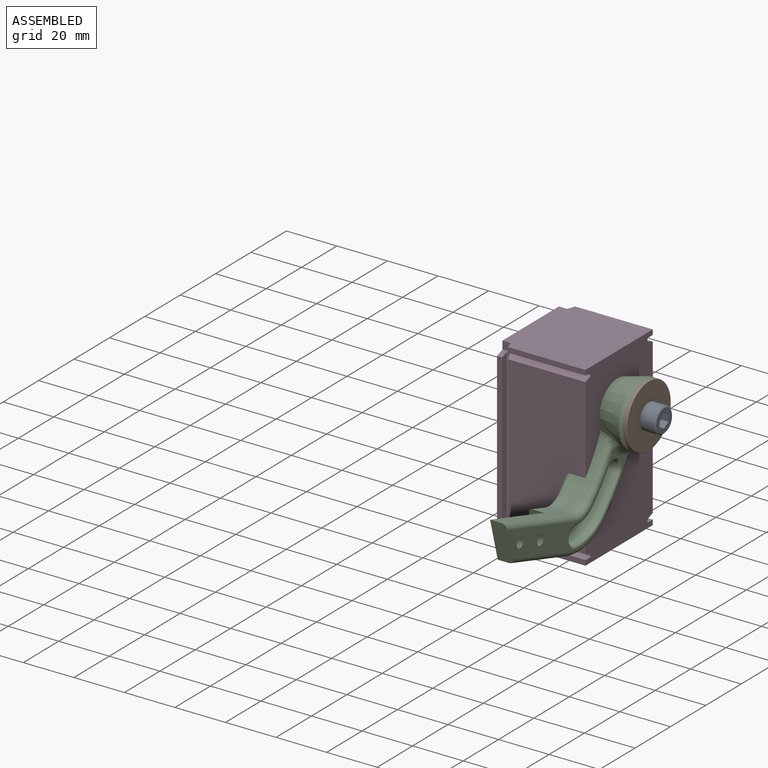
[diagram: assembled view]
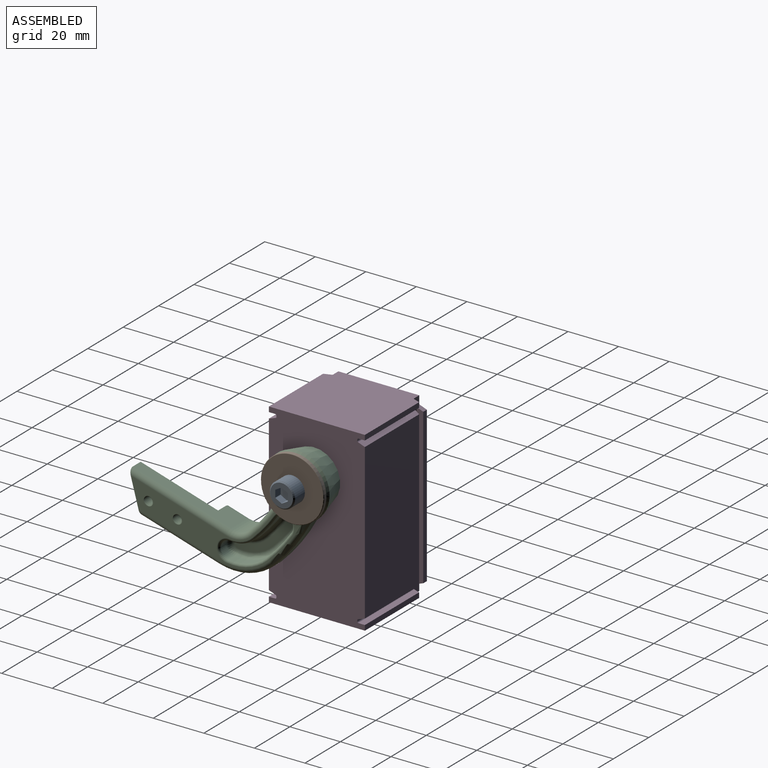
[diagram: assembled view, second angle]
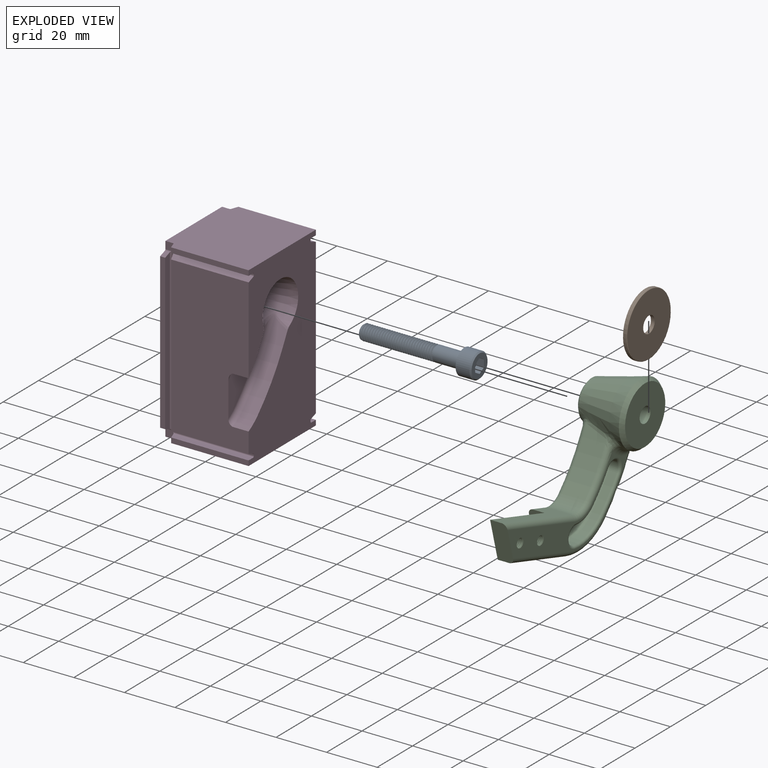
[diagram: exploded view]
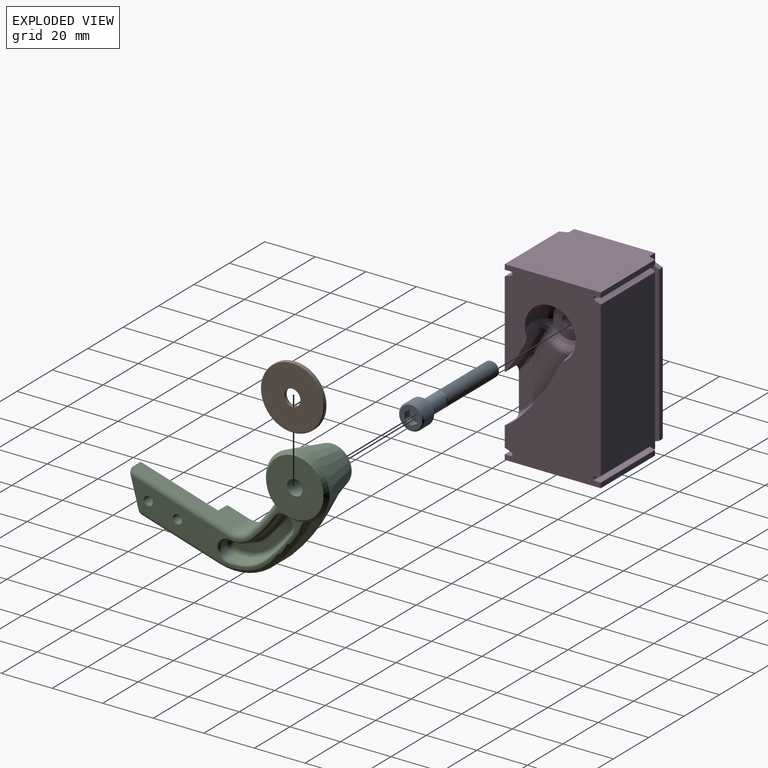
[diagram: exploded view, second angle]
ASSEMBLY  parts=4 mates=3
PART A: 57 faces, bbox 46.5x10.1x10.1 mm
  f0: cone r=2.5mm half-angle=45deg, axis (1,0,0), area 5.2mm2, adj f33,f34,f35,f37,f55,f56
  f1: cylinder r=5mm len=10mm, axis (1,0,0), area 172.8mm2, adj f2,f45
  f2: plane 10x10mm, normal (-1,0,0), area 50.3mm2, adj f1,f4
  f3: plane 9x9mm, normal (1,0,0), area 42mm2, adj f38,f39,f40,f41,f42,f43,f45,f46
  f4: cylinder r=3mm len=11.09mm, axis (1,0,0), area 197.8mm2, adj f2,f5,f35,f37,f52,f53,f54
  f5: cylinder r=3mm len=6mm, axis (1,0,0), area 2mm2, adj f4,f6,f35,f37
  f6: cylinder r=3mm len=6mm, axis (1,0,0), area 2mm2, adj f5,f7,f35,f37
  f7: cylinder r=3mm len=6mm, axis (1,0,0), area 1.9mm2, adj f6,f8,f35,f37
  f8: cylinder r=3mm len=6mm, axis (1,0,0), area 2mm2, adj f7,f9,f35,f37
  f9: cylinder r=3mm len=6mm, axis (1,0,0), area 1.9mm2, adj f8,f10,f35,f37
  f10: cylinder r=3mm len=6mm, axis (1,0,0), area 2mm2, adj f9,f11,f35,f37
  f11: cylinder r=3mm len=6mm, axis (1,0,0), area 2mm2, adj f10,f12,f35,f37
  f12: cylinder r=3mm len=6mm, axis (1,0,0), area 2mm2, adj f11,f13,f35,f37
  f13: cylinder r=3mm len=6mm, axis (1,0,0), area 2mm2, adj f12,f14,f35,f37
  f14: cylinder r=3mm len=6mm, axis (1,0,0), area 2mm2, adj f13,f15,f35,f37
  f15: cylinder r=3mm len=6mm, axis (1,0,0), area 2mm2, adj f14,f16,f35,f37
  f16: cylinder r=3mm len=6mm, axis (1,0,0), area 2mm2, adj f15,f17,f35,f37
  f17: cylinder r=3mm len=6mm, axis (1,0,0), area 2mm2, adj f16,f18,f35,f37
  f18: cylinder r=3mm len=6mm, axis (1,0,0), area 2mm2, adj f17,f19,f35,f37
  f19: cylinder r=3mm len=6mm, axis (1,0,0), area 2mm2, adj f18,f20,f35,f37
  f20: cylinder r=3mm len=6mm, axis (1,0,0), area 2mm2, adj f19,f21,f35,f37
  f21: cylinder r=3mm len=6mm, axis (1,0,0), area 2mm2, adj f20,f22,f35,f37
  f22: cylinder r=3mm len=6mm, axis (1,0,0), area 2mm2, adj f21,f23,f35,f37
  f23: cylinder r=3mm len=6mm, axis (1,0,0), area 2mm2, adj f22,f24,f35,f37
  f24: cylinder r=3mm len=6mm, axis (1,0,0), area 2mm2, adj f23,f25,f35,f37
  f25: cylinder r=3mm len=6mm, axis (1,0,0), area 1.9mm2, adj f24,f26,f35,f37
  f26: cylinder r=3mm len=6mm, axis (1,0,0), area 2mm2, adj f25,f27,f35,f37
  f27: cylinder r=3mm len=6mm, axis (1,0,0), area 2mm2, adj f26,f28,f35,f37
  f28: cylinder r=3mm len=6mm, axis (1,0,0), area 2mm2, adj f27,f29,f35,f37
  f29: cylinder r=3mm len=6mm, axis (1,0,0), area 2mm2, adj f28,f30,f35,f37
  f30: cylinder r=3mm len=6mm, axis (1,0,0), area 2mm2, adj f29,f31,f35,f37
  f31: cylinder r=3mm len=6mm, axis (1,0,0), area 2mm2, adj f30,f32,f35,f37
  f32: cylinder r=3mm len=6mm, axis (1,0,0), area 2mm2, adj f31,f33,f35,f37
  f33: cylinder r=3mm len=6mm, axis (1,0,0), area 1.9mm2, adj f0,f32,f35,f37
  f34: plane 5.05x4.94mm, normal (-1,0,0), area 19.4mm2, adj f0,f35,f36,f55
  f35: bspline ~29.81x6.93mm, area 315.8mm2, adj f0,f4,f5,f6,f7,f8,f9,f10
  f36: bspline ~29.75x5.68mm, area 137.2mm2, adj f34,f35,f37,f54,f55
  f37: bspline ~29.81x6.93mm, area 322mm2, adj f0,f4,f5,f6,f7,f8,f9,f10
  f38: plane 3x2.3mm, normal (0,0.5,0.87), area 8mm2, adj f3,f44,f46,f51
  f39: plane 3x2.3mm, normal (0,-0.5,0.87), area 8mm2, adj f3,f44,f46,f47
  f40: plane 3x2.66mm, normal (0,-1,0), area 8mm2, adj f3,f44,f47,f48
  f41: plane 3x2.3mm, normal (0,-0.5,-0.87), area 8mm2, adj f3,f44,f48,f49
  f42: plane 3x2.3mm, normal (0,0.5,-0.87), area 8mm2, adj f3,f44,f49,f50
  f43: plane 3x2.66mm, normal (0,1,0), area 8mm2, adj f3,f44,f50,f51
  f44: plane 5.71x5mm, normal (1,0,0), area 21.6mm2, adj f38,f39,f40,f41,f42,f43,f46,f47
  f45: cone r=4.5mm half-angle=45deg, axis (-1,0,0), area 21.1mm2, adj f1,f3
  f46: cylinder r=0.2mm len=3mm, axis (-1,0,0), area 0.6mm2, adj f3,f38,f39,f44
  f47: cylinder r=0.2mm len=3mm, axis (-1,0,0), area 0.6mm2, adj f3,f39,f40,f44
  f48: cylinder r=0.2mm len=3mm, axis (-1,0,0), area 0.6mm2, adj f3,f40,f41,f44
  f49: cylinder r=0.2mm len=3mm, axis (-1,0,0), area 0.6mm2, adj f3,f41,f42,f44
  f50: cylinder r=0.2mm len=3mm, axis (-1,0,0), area 0.6mm2, adj f3,f42,f43,f44
  f51: cylinder r=0.2mm len=3mm, axis (-1,0,0), area 0.6mm2, adj f3,f38,f43,f44
  f52: plane 1.72x0.54mm, normal (-0.86,0.5,0.04), area 0.7mm2, adj f4,f37,f54
  f53: plane 1.69x0.54mm, normal (0.86,0.5,-0.04), area 0.7mm2, adj f4,f35,f54
  f54: cylinder r=0.14mm len=1.71mm, axis (-0.05,0,-1), area 0.5mm2, adj f4,f36,f52,f53
  f55: cylinder r=0.14mm len=0.82mm, axis (0.05,0,1), area 0.1mm2, adj f0,f34,f36,f56
  f56: plane 0.81x0.39mm, normal (-0.86,0.5,0.04), area 0.2mm2, adj f0,f37,f55
PART B: 5 faces, bbox 1.5x27.1x27.1 mm
  f0: cylinder r=3.25mm len=6.5mm, axis (-1,0,0), area 30.6mm2, adj f2,f3
  f1: cylinder r=12.5mm len=25mm, axis (-1,0,0), area 98.2mm2, adj f3,f4
  f2: plane 24.5x24.5mm, normal (1,0,0), area 438.3mm2, adj f0,f4
  f3: plane 25x25mm, normal (-1,0,0), area 457.7mm2, adj f0,f1
  f4: torus R=12.25mm, axis (1,0,0), area 30.6mm2, adj f1,f2
PART C: 92 faces, bbox 22.5x83.5x55.2 mm
  f0: cylinder r=1.65mm len=6.5mm, axis (-1,0,0), area 16mm2, adj f6,f13,f72,f74,f76,f77
  f1: cylinder r=1.65mm len=6.5mm, axis (-1,0,0), area 16mm2, adj f6,f13,f66,f68,f70,f71
  f2: cylinder r=2mm len=5.29mm, axis (0,-0.47,-0.88), area 12.9mm2, adj f3,f17,f20,f37,f53,f54
  f3: plane 9.9x6.97mm, normal (-1,0,0), area 10.5mm2, adj f2,f16,f39,f54,f55
  f4: plane 11.88x4.79mm, normal (-1,0,0), area 17.7mm2, adj f27,f31,f32,f43,f57
  f5: plane 30.64x9.24mm, normal (0,-0.29,-0.96), area 144mm2, adj f6,f8,f28,f44
  f6: plane 35.16x25.37mm, normal (-1,0,0), area 427.1mm2, adj f0,f1,f5,f30,f43,f44,f66,f67
  f7: cylinder r=2mm len=39.59mm, axis (0,-0.96,0.29), area 126.1mm2, adj f13,f24,f30,f44
  f8: cylinder r=2mm len=32.41mm, axis (0,-0.96,0.29), area 102.5mm2, adj f5,f13,f29,f44
  f9: plane 22.72x22.72mm, normal (1,0,0), area 375.7mm2, adj f47,f48
  f10: cone r=7.5mm half-angle=14deg, axis (1,0,0), area 951.9mm2, adj f33,f34,f35,f36,f37,f38,f40,f41
  f11: plane 13.06x13.05mm, normal (-1,0,0), area 37.8mm2, adj f45,f49,f50,f51,f52
  f12: cylinder r=2mm len=1.5mm, axis (0,-0.47,-0.88), area 0.9mm2, adj f17,f18,f33
  f13: plane 68.15x27.22mm, normal (1,0,0), area 381.8mm2, adj f0,f1,f7,f8,f18,f23,f24,f29
  f14: cylinder r=2mm len=3.81mm, axis (0,-0.47,-0.88), area 3.9mm2, adj f15,f23,f40
  f15: plane 9x7.4mm, normal (0,0.88,-0.47), area 52.8mm2, adj f14,f16,f22,f42
  f16: cylinder r=2mm len=8.33mm, axis (0,-0.47,-0.88), area 19.1mm2, adj f3,f15,f21,f41
  f17: plane 9x4.08mm, normal (0,-0.88,0.47), area 27.2mm2, adj f2,f12,f19,f35
  f18: torus R=65mm, axis (-1,0,0), area 60.7mm2, adj f12,f13,f19,f24,f34
  f19: cylinder r=63mm len=15.79mm, axis (-1,0,0), area 178.4mm2, adj f17,f18,f20,f25
  f20: torus R=65mm, axis (-1,0,0), area 63mm2, adj f2,f19,f26,f53
  f21: torus R=75mm, axis (-1,0,0), area 75.4mm2, adj f16,f22,f27,f55
  f22: cylinder r=77mm len=19.3mm, axis (-1,0,0), area 218.1mm2, adj f15,f21,f23,f28
  f23: torus R=75mm, axis (-1,0,0), area 74.5mm2, adj f13,f14,f22,f29,f38
  f24: torus R=10mm, axis (-1,0,0), area 29.1mm2, adj f7,f13,f18,f25
  f25: cylinder r=8mm len=9mm, axis (-1,0,0), area 76.5mm2, adj f19,f24,f26,f30
  f26: torus R=10mm, axis (-1,0,0), area 29.1mm2, adj f20,f25,f31,f59
  f27: torus R=20mm, axis (-1,0,0), area 71mm2, adj f4,f21,f28,f32,f56
  f28: cylinder r=22mm len=21.66mm, axis (-1,0,0), area 210.3mm2, adj f5,f22,f27,f29,f43
  f29: torus R=20mm, axis (-1,0,0), area 71mm2, adj f8,f13,f23,f28
  f30: plane 39.01x11.77mm, normal (0,0.29,0.96), area 222.8mm2, adj f6,f7,f25,f31,f43,f44
  f31: cylinder r=2mm len=8.95mm, axis (0,-0.96,0.29), area 25.5mm2, adj f4,f26,f30,f43,f58
  f32: cylinder r=2mm len=2.28mm, axis (0,-0.96,0.29), area 2mm2, adj f4,f27,f43
  f33: bspline ~4.55x4.38mm, area 7.7mm2, adj f10,f12,f34,f35
  f34: bspline ~6.52x5.02mm, area 14.9mm2, adj f10,f18,f33,f36
  f35: bspline ~17.56x6.98mm, area 23.9mm2, adj f10,f17,f33,f37
  f36: torus R=15.34mm, axis (-1,0,0), area 48.3mm2, adj f10,f13,f34,f38
  f37: bspline ~5.53x5.3mm, area 14.5mm2, adj f2,f10,f35,f39,f49
  f38: bspline ~4.41x4.33mm, area 9.3mm2, adj f10,f23,f36,f40
  f39: torus R=10.59mm, axis (-1,0,0), area 33.7mm2, adj f3,f37,f41,f51
  f40: bspline ~5.47x4.74mm, area 15.2mm2, adj f10,f14,f38,f42
  f41: bspline ~6.05x5.65mm, area 15mm2, adj f10,f16,f39,f42,f52
  f42: bspline ~11.62x5.7mm, area 17.2mm2, adj f10,f15,f40,f41
  f43: plane 16.46x7.03mm, normal (0,-0.96,-0.26), area 105.3mm2, adj f4,f6,f28,f30,f31,f32
  f44: plane 16.46x7.03mm, normal (0,-0.96,-0.26), area 105.3mm2, adj f5,f6,f7,f8,f13,f30
  f45: cylinder r=5.5mm len=11mm, axis (-1,0,0), area 241.9mm2, adj f11,f46
  f46: plane 11x11mm, normal (-1,0,0), area 65.4mm2, adj f45,f47
  f47: cylinder r=3.07mm len=15mm, axis (-1,0,0), area 289.7mm2, adj f9,f46
  f48: cone r=12.6mm half-angle=38deg, axis (-1,0,0), area 152mm2, adj f9,f10
  f49: bspline ~1.66x1.63mm, area 1.7mm2, adj f11,f37,f50,f51
  f50: cone r=6.5mm half-angle=52deg, axis (1,0,0), area 55.5mm2, adj f10,f11,f49,f52
  f51: cone r=6.51mm half-angle=53.7deg, axis (1,0,0), area 10.7mm2, adj f11,f39,f49,f52
  f52: bspline ~1.56x1.49mm, area 2mm2, adj f11,f41,f50,f51
  f53: cone r=66.5mm half-angle=45deg, axis (1,0,0), area 45.1mm2, adj f2,f20,f54,f59,f60
  f54: cone r=13.09mm half-angle=45deg, axis (1,0,0), area 18.5mm2, adj f2,f3,f53,f55,f60
  f55: cone r=73.5mm half-angle=45deg, axis (-1,0,0), area 52.5mm2, adj f3,f21,f54,f56,f60
  f56: cone r=18.5mm half-angle=45deg, axis (-1,0,0), area 41.4mm2, adj f27,f55,f57,f60
  f57: plane 11.4x4.34mm, normal (-0.71,0.68,0.19), area 21.2mm2, adj f4,f56,f58,f60
  f58: plane 5.49x3.09mm, normal (-0.71,-0.2,-0.68), area 9.3mm2, adj f31,f57,f59,f60
  f59: cone r=11.5mm half-angle=45deg, axis (1,0,0), area 24.2mm2, adj f26,f53,f58,f60
  f60: plane 33.01x26.53mm, normal (-1,0,0), area 268.6mm2, adj f53,f54,f55,f56,f57,f58,f59
  f61: cylinder r=11.5mm len=9.67mm, axis (1,0,0), area 31.6mm2, adj f64,f81,f82,f87
  f62: cylinder r=18.5mm len=15.55mm, axis (1,0,0), area 50.8mm2, adj f63,f79,f82,f91
  f63: cylinder r=73.5mm len=11.37mm, axis (1,0,0), area 44.7mm2, adj f62,f78,f84,f90
  f64: cylinder r=66.5mm len=10.29mm, axis (1,0,0), area 40.4mm2, adj f61,f80,f84,f86
  f65: plane 24.73x18.05mm, normal (1,0,0), area 90.8mm2, adj f78,f79,f80,f81,f83,f85
  f66: bspline ~6.63x4.06mm, area 45.7mm2, adj f1,f6,f67,f71
  f67: bspline ~6.38x4.64mm, area 12mm2, adj f6,f66,f68,f69,f70
  f68: bspline ~3.96x1.76mm, area 1.4mm2, adj f1,f6,f67,f70
  f69: bspline ~4.18x4.16mm, area 0.7mm2, adj f13,f67,f70,f71
  f70: bspline ~6.63x4.06mm, area 45.7mm2, adj f1,f13,f67,f68,f69
  f71: bspline ~3.9x2.02mm, area 1.4mm2, adj f1,f13,f66,f69
  f72: bspline ~6.75x4.55mm, area 45.7mm2, adj f0,f6,f73,f76
  f73: bspline ~6.28x4.11mm, area 12mm2, adj f6,f72,f74,f75,f77
  f74: bspline ~3.96x1.76mm, area 1.4mm2, adj f0,f6,f73,f77
  f75: bspline ~4.11x3.88mm, area 0.7mm2, adj f13,f73,f76,f77
  f76: bspline ~4.08x2.38mm, area 1.4mm2, adj f0,f13,f72,f75
  f77: bspline ~6.63x4.06mm, area 45.7mm2, adj f0,f13,f73,f74,f75
  f78: torus R=71.5mm, axis (1,0,0), area 46.3mm2, adj f63,f65,f79,f85
  f79: torus R=16.5mm, axis (1,0,0), area 51.1mm2, adj f62,f65,f78,f83
  f80: torus R=68.5mm, axis (1,0,0), area 42.8mm2, adj f64,f65,f81,f85
  f81: torus R=13.5mm, axis (1,0,0), area 35.1mm2, adj f61,f65,f80,f83
  f82: cylinder r=3.5mm len=6.96mm, axis (-1,0,0), area 33mm2, adj f61,f62,f83,f89
  f83: torus R=1.5mm, axis (-1,0,0), area 27.4mm2, adj f65,f79,f81,f82
  f84: cylinder r=3.5mm len=6.39mm, axis (-1,0,0), area 33mm2, adj f63,f64,f85,f88
  f85: torus R=1.5mm, axis (-1,0,0), area 27.4mm2, adj f65,f78,f80,f84
  f86: torus R=65.5mm, axis (-1,0,0), area 21.1mm2, adj f13,f64,f87,f88
  f87: torus R=10.5mm, axis (-1,0,0), area 16mm2, adj f13,f61,f86,f89
  f88: torus R=4.5mm, axis (-1,0,0), area 19.1mm2, adj f13,f84,f86,f90
  f89: torus R=4.5mm, axis (-1,0,0), area 19.1mm2, adj f13,f82,f87,f91
  f90: torus R=74.5mm, axis (-1,0,0), area 23.5mm2, adj f13,f63,f88,f91
  f91: torus R=19.5mm, axis (-1,0,0), area 27.1mm2, adj f13,f62,f89,f90
PART D: 100 faces, bbox 41.1x40.4x70.8 mm
  f0: plane 38x35mm, normal (0,0,-1), area 1307.3mm2, adj f1,f6,f8,f9,f20,f70,f71,f72
  f1: plane 70x38mm, normal (-1,0,0), area 2614.5mm2, adj f0,f2,f3,f4,f70,f75,f76,f77
  f2: plane 38x35mm, normal (0,0,1), area 1307.3mm2, adj f1,f9,f12,f15,f18,f43,f44,f70
  f3: plane 61.32x2mm, normal (0,1,0), area 122.6mm2, adj f1,f10,f97,f98
  f4: plane 61.32x2mm, normal (0,-1,0), area 122.6mm2, adj f1,f16,f77,f78
  f5: plane 61.32x30.66mm, normal (0,1,0), area 1879.8mm2, adj f9,f14,f88,f94
  f6: plane 30.66x2mm, normal (0,1,0), area 61.3mm2, adj f0,f9,f72,f90
  f7: plane 62.07x31.41mm, normal (0,-1,0), area 1730mm2, adj f9,f17,f50,f52,f55,f56,f57,f80
  f8: plane 30.66x2mm, normal (0,-1,0), area 61.3mm2, adj f0,f9,f73,f83
  f9: plane 70.07x38.07mm, normal (1,0,0), area 1965.9mm2, adj f0,f2,f5,f6,f7,f8,f42,f43
  f10: plane 63.14x2.5mm, normal (1,0,0), area 155.6mm2, adj f3,f11,f97,f98
  f11: cylinder r=0.5mm len=64.2mm, axis (0,0,1), area 50mm2, adj f10,f70,f96,f97,f98,f99
  f12: cylinder r=0.5mm len=2.5mm, axis (0,0,1), area 1.4mm2, adj f2,f15,f70,f93
  f13: cylinder r=0.5mm len=64.2mm, axis (0,0,1), area 38.9mm2, adj f14,f70,f89,f95
  f14: plane 63.26x2.67mm, normal (-0.94,0.34,0), area 177.1mm2, adj f5,f13,f88,f94
  f15: plane 2.67x2.03mm, normal (-0.94,0.34,0), area 5.7mm2, adj f2,f12,f43,f92,f93
  f16: plane 63.14x2.5mm, normal (1,0,0), area 155.6mm2, adj f4,f21,f77,f78
  f17: plane 63.26x2.67mm, normal (-0.94,-0.34,0), area 177.1mm2, adj f7,f19,f80,f85
  f18: plane 2.67x2.03mm, normal (-0.94,-0.34,0), area 5.7mm2, adj f2,f44,f74,f86,f87
  f19: cylinder r=0.5mm len=64.2mm, axis (0,0,1), area 38.9mm2, adj f17,f75,f81,f84
  f20: cylinder r=0.5mm len=2.5mm, axis (0,0,1), area 1.4mm2, adj f0,f73,f75,f82
  f21: cylinder r=0.5mm len=64.2mm, axis (0,0,1), area 50mm2, adj f16,f75,f76,f77,f78,f79
  f22: cylinder r=2.5mm len=5mm, axis (1,0,0), area 12.7mm2, adj f23,f65,f66,f67,f69
  f23: cylinder r=2.5mm len=5mm, axis (1,0,0), area 3.9mm2, adj f22,f24,f67,f69
  f24: cylinder r=2.5mm len=5mm, axis (1,0,0), area 3.8mm2, adj f23,f25,f67,f69
  f25: cylinder r=2.5mm len=5mm, axis (1,0,0), area 3.9mm2, adj f24,f26,f67,f69
  f26: cylinder r=2.5mm len=5mm, axis (1,0,0), area 3.8mm2, adj f25,f27,f67,f69
  f27: cylinder r=2.5mm len=5mm, axis (1,0,0), area 3.9mm2, adj f26,f28,f67,f69
  f28: cylinder r=2.5mm len=5mm, axis (1,0,0), area 3.9mm2, adj f27,f29,f67,f69
  f29: cylinder r=2.5mm len=5mm, axis (1,0,0), area 3.9mm2, adj f28,f30,f67,f69
  f30: cylinder r=2.5mm len=5mm, axis (1,0,0), area 3.9mm2, adj f29,f31,f67,f69
  f31: cylinder r=2.5mm len=5mm, axis (1,0,0), area 3.8mm2, adj f30,f32,f67,f69
  f32: cylinder r=2.5mm len=5mm, axis (1,0,0), area 3.9mm2, adj f31,f33,f67,f69
  f33: cylinder r=2.5mm len=5mm, axis (1,0,0), area 3.9mm2, adj f32,f34,f67,f69
  f34: cylinder r=2.5mm len=5mm, axis (1,0,0), area 3.9mm2, adj f33,f35,f67,f69
  f35: cylinder r=2.5mm len=5mm, axis (1,0,0), area 3.8mm2, adj f34,f36,f67,f69
  f36: cylinder r=2.5mm len=5mm, axis (1,0,0), area 3.9mm2, adj f35,f37,f67,f69
  f37: cylinder r=2.5mm len=5mm, axis (1,0,0), area 3.9mm2, adj f36,f38,f67,f69
  f38: cylinder r=2.5mm len=5mm, axis (1,0,0), area 3.9mm2, adj f37,f39,f67,f69
  f39: cylinder r=2.5mm len=5mm, axis (1,0,0), area 3.9mm2, adj f38,f40,f67,f69
  f40: cylinder r=2.5mm len=5mm, axis (1,0,0), area 3.9mm2, adj f39,f41,f67,f69
  f41: cylinder r=2.5mm len=4.23mm, axis (1,0,0), area 1mm2, adj f40,f45,f67,f69
  f42: cone r=7.55mm half-angle=12.8deg, axis (1,0,0), area 395.8mm2, adj f9,f46,f58,f59,f63,f64
  f43: plane 30.66x2mm, normal (0,1,0), area 61.3mm2, adj f2,f9,f15,f92
  f44: plane 30.66x2mm, normal (0,-1,0), area 61.3mm2, adj f2,f9,f18,f87
  f45: plane 13.38x13.38mm, normal (1,0,0), area 111mm2, adj f41,f46,f67,f68,f69
  f46: cone r=6.55mm half-angle=51.4deg, axis (1,0,0), area 70.3mm2, adj f42,f45,f60,f61,f62
  f47: plane 7.73x6mm, normal (0,-0.88,0.47), area 42.1mm2, adj f9,f48,f54,f64
  f48: cylinder r=2mm len=9.06mm, axis (0,-0.47,-0.88), area 22.2mm2, adj f47,f50,f53,f62,f63
  f49: plane 6.01x4.24mm, normal (0,0.88,-0.47), area 22.8mm2, adj f9,f51,f55,f58
  f50: plane 28.51x19.41mm, normal (1,0,0), area 244.6mm2, adj f7,f48,f51,f52,f53,f56,f61
  f51: cylinder r=2mm len=5.4mm, axis (0,-0.47,-0.88), area 13.2mm2, adj f49,f50,f52,f59,f60
  f52: torus R=64.95mm, axis (-1,0,0), area 43.6mm2, adj f7,f50,f51,f55
  f53: torus R=75.05mm, axis (-1,0,0), area 75mm2, adj f48,f50,f54,f56
  f54: cylinder r=77.05mm len=19.2mm, axis (-1,0,0), area 144.5mm2, adj f9,f47,f53,f57
  f55: cylinder r=62.95mm len=10.43mm, axis (-1,0,0), area 75.3mm2, adj f7,f9,f49,f52
  f56: torus R=20.05mm, axis (-1,0,0), area 17.1mm2, adj f7,f50,f53,f57
  f57: cylinder r=22.05mm len=6mm, axis (-1,0,0), area 37.3mm2, adj f7,f9,f54,f56
  f58: bspline ~13.84x5.65mm, area 14.1mm2, adj f9,f42,f49,f59
  f59: bspline ~6.06x4.73mm, area 10.7mm2, adj f42,f51,f58,f60
  f60: bspline ~3.74x2.63mm, area 3.8mm2, adj f46,f51,f59,f61
  f61: torus R=10.61mm, axis (-1,0,0), area 33.4mm2, adj f46,f50,f60,f62
  f62: bspline ~3.62x2.57mm, area 5mm2, adj f46,f48,f61,f63
  f63: bspline ~5.62x4.71mm, area 10.2mm2, adj f42,f48,f62,f64
  f64: bspline ~8.62x4.3mm, area 9.3mm2, adj f9,f42,f47,f63
  f65: plane 5x5mm, normal (1,0,0), area 19.6mm2, adj f22
  f66: plane 0.75x0.58mm, normal (0.06,0,1), area 0.2mm2, adj f22,f67,f68,f69
  f67: bspline ~20.31x7.02mm, area 215.1mm2, adj f22,f23,f24,f25,f26,f27,f28,f29
  f68: bspline ~19.79x7.15mm, area 57mm2, adj f45,f66,f67,f69
  f69: bspline ~19.75x6.08mm, area 209.6mm2, adj f22,f23,f24,f25,f26,f27,f28,f29
  f70: plane 70x35mm, normal (0,1,0), area 68.2mm2, adj f0,f1,f2,f9,f11,f12,f13,f71
  f71: cylinder r=0.5mm len=2.5mm, axis (0,0,1), area 1.4mm2, adj f0,f70,f72,f91
  f72: plane 2.67x2.03mm, normal (-0.94,0.34,0), area 5.7mm2, adj f0,f6,f71,f90,f91
  f73: plane 2.67x2.03mm, normal (-0.94,-0.34,0), area 5.7mm2, adj f0,f8,f20,f82,f83
  f74: cylinder r=0.5mm len=2.5mm, axis (0,0,1), area 1.4mm2, adj f2,f18,f75,f86
  f75: plane 70x35mm, normal (0,-1,0), area 68.2mm2, adj f0,f1,f2,f9,f19,f20,f21,f74
  f76: cylinder r=0.5mm len=2.5mm, axis (-1,0,0), area 1.4mm2, adj f1,f21,f75,f77
  f77: plane 2.67x2.03mm, normal (0,-0.34,-0.94), area 5.7mm2, adj f1,f4,f16,f21,f76
  f78: plane 2.67x2.03mm, normal (0,-0.34,0.94), area 5.7mm2, adj f1,f4,f16,f21,f79
  f79: cylinder r=0.5mm len=2.5mm, axis (-1,0,0), area 1.4mm2, adj f1,f21,f75,f78
  f80: plane 31.63x2.67mm, normal (0,-0.34,-0.94), area 88.5mm2, adj f7,f9,f17,f81
  f81: cylinder r=0.5mm len=32.1mm, axis (-1,0,0), area 19.5mm2, adj f9,f19,f75,f80
  f82: cylinder r=0.5mm len=32.1mm, axis (-1,0,0), area 25mm2, adj f9,f20,f73,f75,f83
  f83: plane 31.57x2.5mm, normal (0,0,1), area 77.8mm2, adj f8,f9,f73,f82
  f84: cylinder r=0.5mm len=32.1mm, axis (-1,0,0), area 19.5mm2, adj f9,f19,f75,f85
  f85: plane 31.63x2.67mm, normal (0,-0.34,0.94), area 88.5mm2, adj f7,f9,f17,f84
  f86: cylinder r=0.5mm len=32.1mm, axis (-1,0,0), area 25mm2, adj f9,f18,f74,f75,f87
  f87: plane 31.57x2.5mm, normal (0,0,-1), area 77.8mm2, adj f9,f18,f44,f86
  f88: plane 31.63x2.67mm, normal (0,0.34,-0.94), area 88.5mm2, adj f5,f9,f14,f89
  f89: cylinder r=0.5mm len=32.1mm, axis (-1,0,0), area 19.5mm2, adj f9,f13,f70,f88
  f90: plane 31.57x2.5mm, normal (0,0,1), area 77.8mm2, adj f6,f9,f72,f91
  f91: cylinder r=0.5mm len=32.1mm, axis (-1,0,0), area 25mm2, adj f9,f70,f71,f72,f90
  f92: plane 31.57x2.5mm, normal (0,0,-1), area 77.8mm2, adj f9,f15,f43,f93
  f93: cylinder r=0.5mm len=32.1mm, axis (-1,0,0), area 25mm2, adj f9,f12,f15,f70,f92
  f94: plane 31.63x2.67mm, normal (0,0.34,0.94), area 88.5mm2, adj f5,f9,f14,f95
  f95: cylinder r=0.5mm len=32.1mm, axis (-1,0,0), area 19.5mm2, adj f9,f13,f70,f94
  f96: cylinder r=0.5mm len=2.5mm, axis (-1,0,0), area 1.4mm2, adj f1,f11,f70,f97
  f97: plane 2.67x2.03mm, normal (0,0.34,-0.94), area 5.7mm2, adj f1,f3,f10,f11,f96
  f98: plane 2.67x2.03mm, normal (0,0.34,0.94), area 5.7mm2, adj f1,f3,f10,f11,f99
  f99: cylinder r=0.5mm len=2.5mm, axis (-1,0,0), area 1.4mm2, adj f1,f11,f70,f98
PLACE A t=(7.5,0,0)mm
PLACE B at identity
PLACE C at identity
PLACE D t=(-11,0,0)mm
MATE fastened D.f42 <-> C.f45  axis (1,0,0) through (-22,0,0)mm
MATE fastened B.f1 <-> C.f47  axis (-1,0,0) through (0,0,0)mm
MATE fastened A.f1 <-> B.f0  axis (1,0,0) through (1.5,0,0)mm
